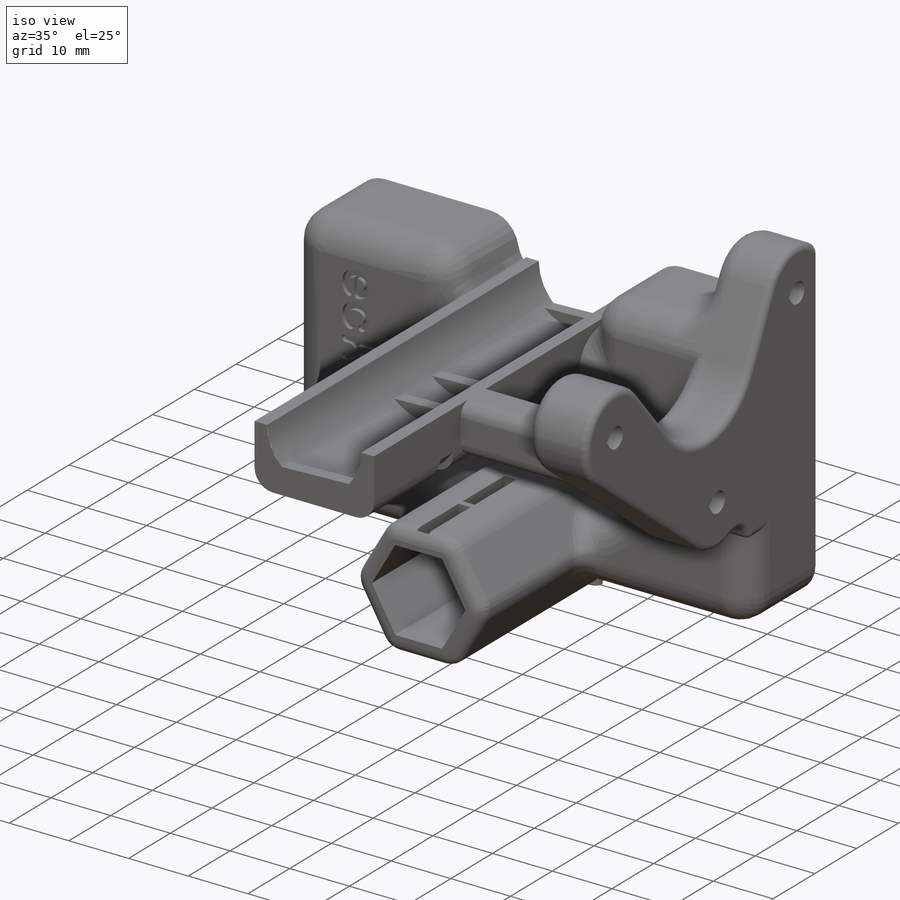
[diagram: iso view]
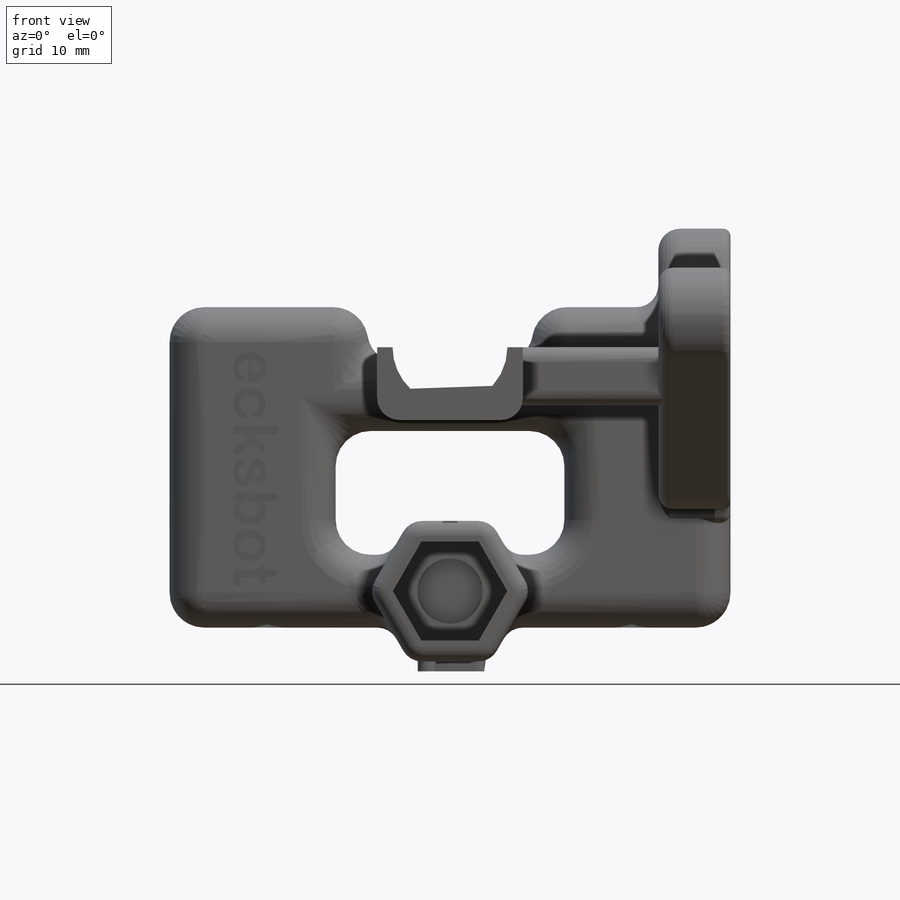
[diagram: front view]
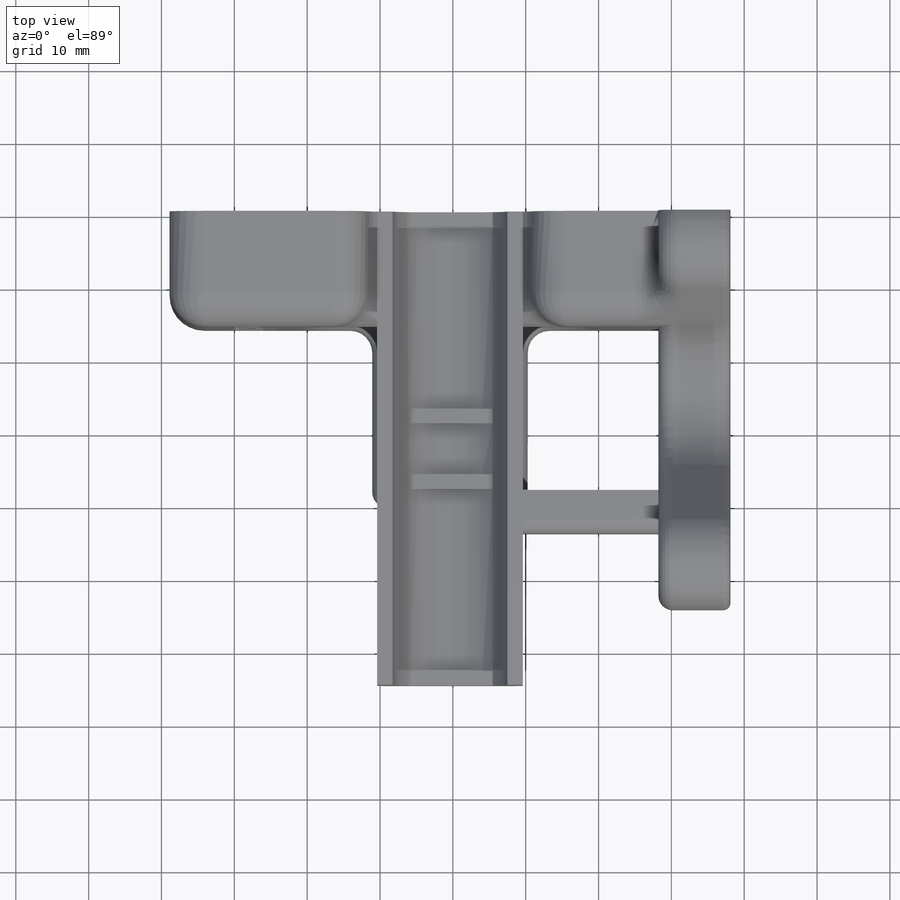
[diagram: top view]
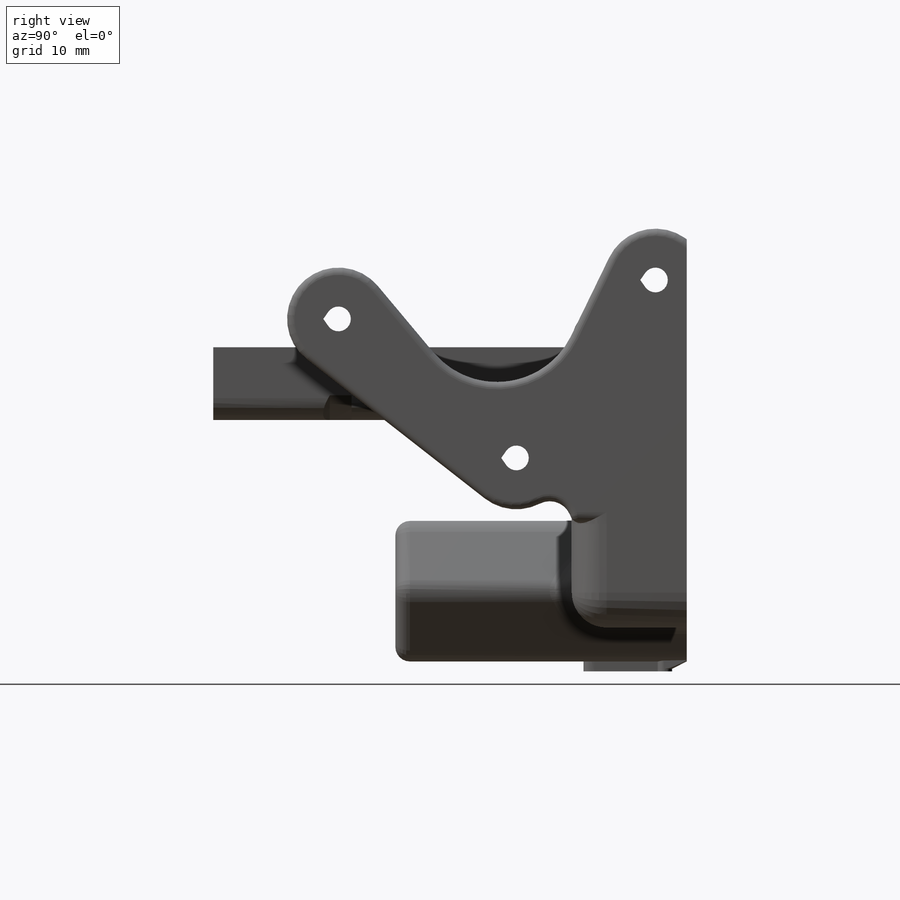
[diagram: right view]
SOLIDWORKS PART (.sldprt)
format: sldprt  version: not decoded by parser v0  size: 1,775,616 bytes
history: native  units: mm
features: sketch x33, fillet x23, cut_extrude x17, extrude x16, plane x6, chamfer x5, material x1 (+11 scaffold rows collapsed)
feature tree (112):
  scaffold x11  (default folders/planes/origin — collapsed)
  material  "Material <not specified>"
  sketch  "Sketch9"  dims[D1=0.0mm]
  extrude  "Boss-Extrude5"  Depth=15.8mm
  sketch  "Sketch13"  dims[D1=5.0mm D2=~19.296152mm]
  extrude  "Boss-Extrude6"  Depth=24.2mm
  sketch  "Sketch16"  dims[c1.D1=31.4mm c1.D2=13.0mm c1.D4=17.0mm c1.D5=10.0mm c2.D2=10.0mm c2.D5=10.0mm c2.D1=15.7mm c3.D2=15.7mm c3.D3=0.0mm]
  cut_extrude  "Cut-Extrude3"  [1 undecoded]
  sketch  "Sketch25"  dims[c1.D1=23.358mm c1.D4=6.5mm c2.D1=23.75mm c2.D2=22.5mm c2.D3=6.5mm]
  cut_extrude  "Cut-Extrude4"  [1 undecoded]
  sketch  "Sketch27"  dims[D4=10.0mm D1=1.25mm D2=1.25mm D3=5.5mm]
  extrude  "Boss-Extrude9"  Depth=49.2mm
  sketch  "Sketch31"  dims[c1.D1=~7.884411mm c1.D2=~7.884411mm c1.D3=~7.884411mm c2.D2=10.0mm c2.D3=~0.002293mm]
  cut_extrude  "Cut-Extrude5"  [1 undecoded]
  sketch  "Sketch33"  dims[D1=5.5mm]
  extrude  "Boss-Extrude10"  Depth=2mm
  sketch  "Sketch34"  dims[D1=5.5mm]
  extrude  "Boss-Extrude11"  Depth=2mm
  plane  "Plane1"  Offset=2mm
  plane  "Plane2"  Offset=9mm
  sketch  "Sketch36"  dims[D1=0.0mm]
  extrude  "Boss-Extrude12"  Depth=2mm
  sketch  "Sketch37"  dims[D1=0.0mm]
  extrude  "Boss-Extrude13"  Depth=2mm
  sketch  "Sketch40"  dims[D1=~1.247788mm]
  cut_extrude  "Cut-Extrude6"  [1 undecoded]
  sketch  "Sketch43"  dims[D1=13.6mm]
  cut_extrude  "Cut-Extrude7"  Depth=29.5mm
  sketch  "Sketch46"  dims[c1.D2=~7.851964mm c1.D1=0.0mm c2.D2=1.0mm c2.D3=1.0mm]
  cut_extrude  "Cut-Extrude8"  Depth=6.5mm
  sketch  "Sketch49"
  extrude  "Boss-Extrude14"  Depth=0.68mm
  sketch  "Sketch52"  dims[c1.D4=~2.716065mm c1.D5=~5.182263mm c1.D6=~5.182263mm c2.D4=~4.73107mm c3.D4=~41.597019deg c4.D4=~4.73107mm c5.D4=35.0deg c5.D5=~4.73107mm c6.D5=35.0deg c6.D1=25.0mm c6.D2=25.0mm c6.D3=7.9mm]
  cut_extrude  "Cut-Extrude10"  Depth=42mm
  plane  "Plane3"  Offset=3mm
  sketch  "Sketch57"  dims[c1.D1=~6.886063mm c2.D1=82.0deg c3.D1=7.2269mm c4.D1=82.0deg]
  cut_extrude  "Cut-Extrude13"  [1 undecoded]
  plane  "Plane4"  Offset=4mm
  sketch  "Sketch58"  dims[D1=0.82mm D2=2.0mm D3=0.5mm]
  extrude  "Boss-Extrude15"  Depth=37mm
  chamfer  "Chamfer4"  Distance=1mm Angle=66deg
  sketch  "Sketch61"  dims[D1=5.1mm D2=2.0mm]
  extrude  "Boss-Extrude16"  Depth=1.35mm
  plane  "Plane5"  Offset=19mm
  sketch  "Sketch64"  dims[c1.D1=3.4mm c1.D2=~3.394994mm c2.D1=0.0mm c2.D2=4.1mm c2.D3=0.0mm c3.D1=4.1mm]
  cut_extrude  "Cut-Extrude14"  Depth=6mm
  chamfer  "Chamfer7"  Distance=3mm Angle=45deg
  plane  "Plane6"  Offset=0.7mm
  sketch  "Sketch70"  dims[D1=0.0mm D2=0.0mm]
  cut_extrude  "Cut-Extrude15"  Depth=6mm
  chamfer  "Chamfer8"  Distance=3mm Angle=45deg
  sketch  "Sketch73"  dims[D1=1.0mm D2=1.0mm D3=1.0mm D4=10.0mm D5=1.0mm D6=10.0mm]
  cut_extrude  "Cut-Extrude17"  [1 undecoded]
  chamfer  "Chamfer9"  Distance=1mm Angle=63deg
  sketch  "Sketch82"  dims[c1.D4=11.25mm c1.D3=~11.913857mm c2.D3=~39.922744deg c3.D3=~7.645767mm c3.D1=~1.507558mm c4.D1=35.0deg c4.D2=~2.060692mm c5.D2=35.0deg c5.D3=~2.113063mm c6.D3=35.0deg c6.D1=3.5mm c6.D2=3.5mm]
  extrude  "Boss-Extrude17"  Depth=2mm
  fillet  "Fillet5"  Radius=3mm
  sketch  "Sketch83"  dims[D1=0.0mm]
  cut_extrude  "Cut-Extrude19"  [1 undecoded]
  sketch  "Sketch84"  dims[c1.D1=~3.19294mm c2.D1=35.0deg c2.D2=~4.163998mm c3.D2=35.0deg c3.D3=~3.795573mm c4.D3=35.0deg]
  cut_extrude  "Cut-Extrude20"  Depth=4mm
  sketch  "Sketch94"  dims[D1=0.0mm]
  extrude  "Boss-Extrude20"  Depth=3.892mm
  sketch  "Sketch95"  dims[D1=0.0mm]
  extrude  "Boss-Extrude21"  [1 undecoded]
  sketch  "Sketch97"  dims[D1=0.0mm D2=0.0mm D3=0.0mm D4=0.0mm]
  extrude  "Boss-Extrude22"  Depth=1.892mm
  fillet  "Fillet14"  Radius=4.8mm
  fillet  "Fillet11"  Radius=4.8mm
  fillet  "Fillet12"  Radius=3mm
  fillet  "Fillet13"  Radius=4.8mm
  sketch  "Sketch86"  dims[D1=2.0mm D2=6.0mm]
  extrude  "Boss-Extrude18"  [1 undecoded]
  fillet  "Fillet17"  Radius=2mm
  fillet  "Fillet21"  Radius=4.8mm
  fillet  "Fillet22"  Radius=4.8mm
  fillet  "Fillet23"  Radius=4.8mm
  fillet  "Fillet24"  Radius=4.8mm
  fillet  "Fillet25"  Radius=4.8mm
  fillet  "Fillet26"  Radius=4.8mm
  fillet  "Fillet27"  Radius=3mm
  fillet  "Fillet28"  Radius=3mm
  fillet  "Fillet29"  Radius=2mm
  fillet  "Fillet30"  Radius=4.8mm
  sketch  "Sketch87"  dims[c1.D2=18.608mm c1.D1=1.5776mm c2.D2=1.5776mm c2.D3=0.7888mm c2.D4=0.7888mm c3.D3=0.3978mm c3.D4=0.3978mm c3.D2=0.7888mm c4.D3=0.7888mm c4.D4=0.3978mm c4.D5=0.3978mm c4.D6=0.3978mm c4.D7=0.3978mm]
  cut_extrude  "Cut-Extrude21"  Depth=0.68mm
  fillet  "Fillet31"  Radius=3mm
  fillet  "Fillet32"  Radius=2mm
  fillet  "Fillet33"  Radius=3mm
  fillet  "Fillet35"  Radius=2mm
  fillet  "Fillet36"  Radius=2mm
  sketch  "Sketch91"  dims[D1=0.0mm D2=0.0mm]
  cut_extrude  "Cut-Extrude22"  [1 undecoded]
  chamfer  "Chamfer10"  Distance=1mm Angle=45deg
  sketch  "Sketch92"  dims[D1=0.3978mm D2=0.3978mm D3=0.3978mm]
  extrude  "Boss-Extrude19"  Depth=4.8mm
  sketch  "Sketch98"
  cut_extrude  "Cut-Extrude23"  Depth=14.35344mm
  fillet  "Fillet37"  Radius=1.5mm
  fillet  "Fillet38"  Radius=4.8mm
  sketch  "Sketch100"  dims[D1=4.0mm]
  cut_extrude  "Cut-Extrude24"  Depth=0.68mm
decode coverage: 82 of 94 modeling features carry decoded parameters
note: ~ marks probable driven/reference dimensions
note: 10 parameter values undecoded
summary: no parameter record found for 10 features
note: suppression state not decoded; provenance and decode notes live in map.json
